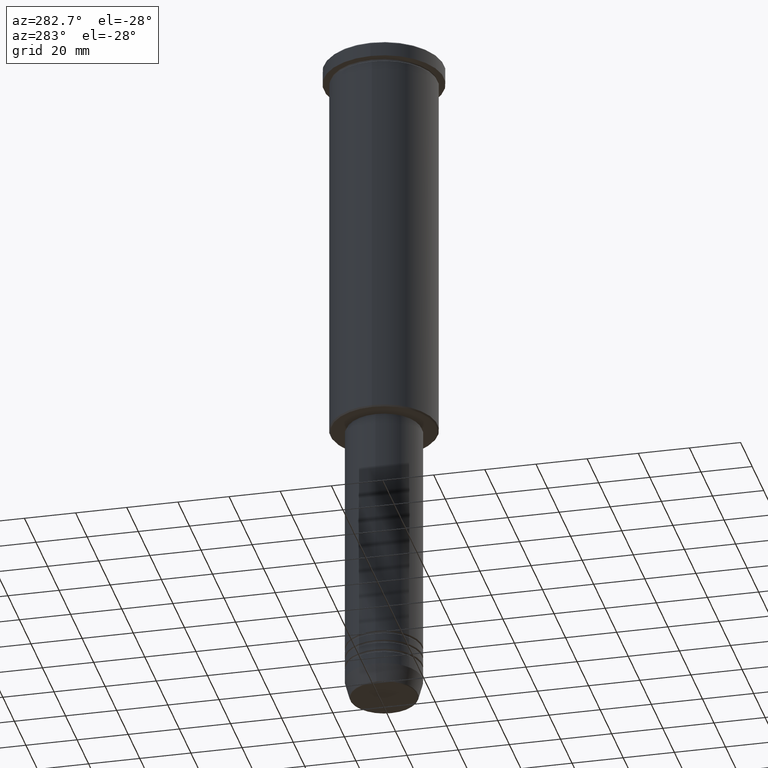
[diagram: clean part render]
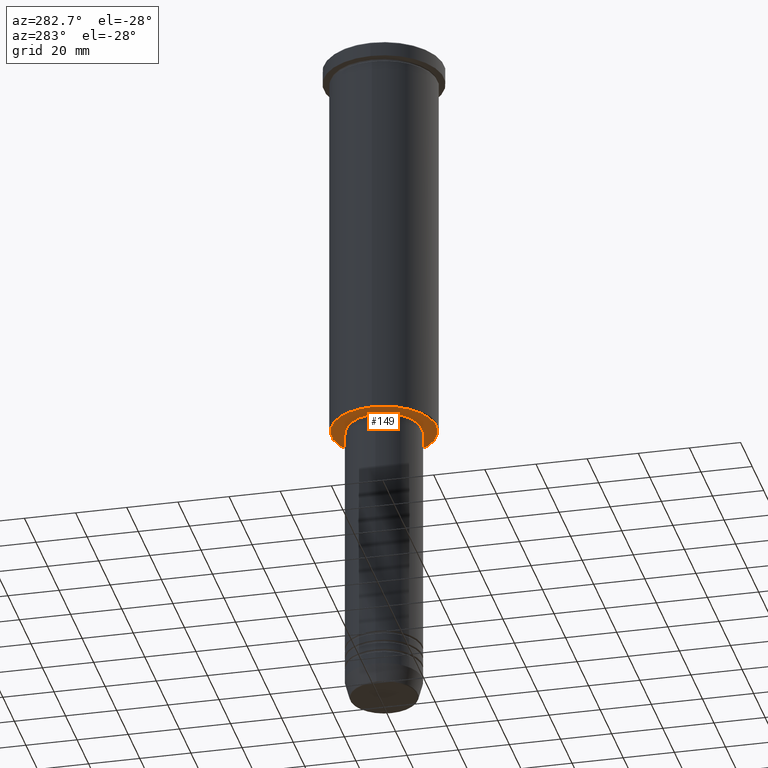
[diagram: same view with one face highlighted and labeled with its STEP entity id]
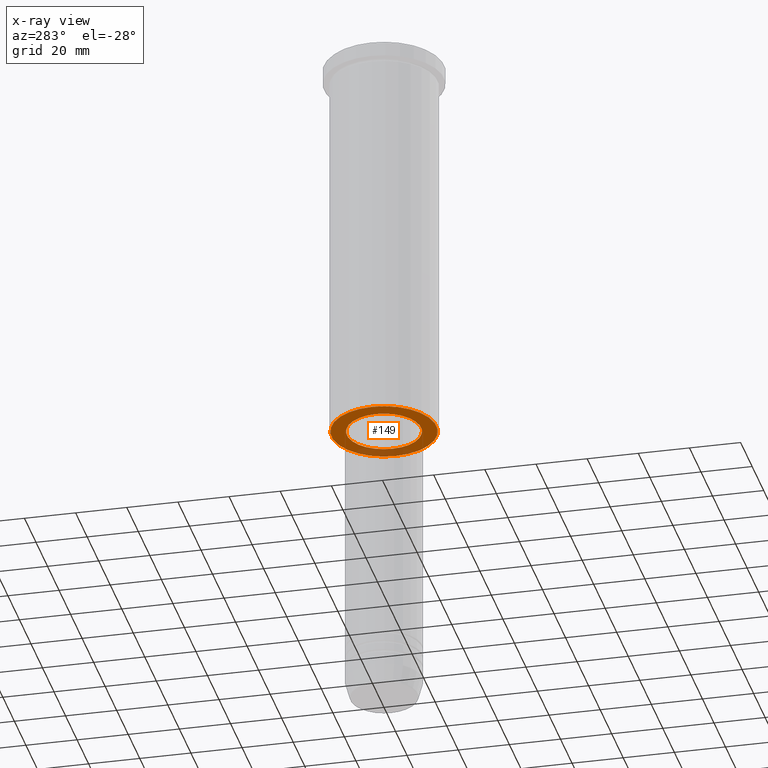
[diagram: x-ray of the same camera — body ghosted, the highlighted face saturated]
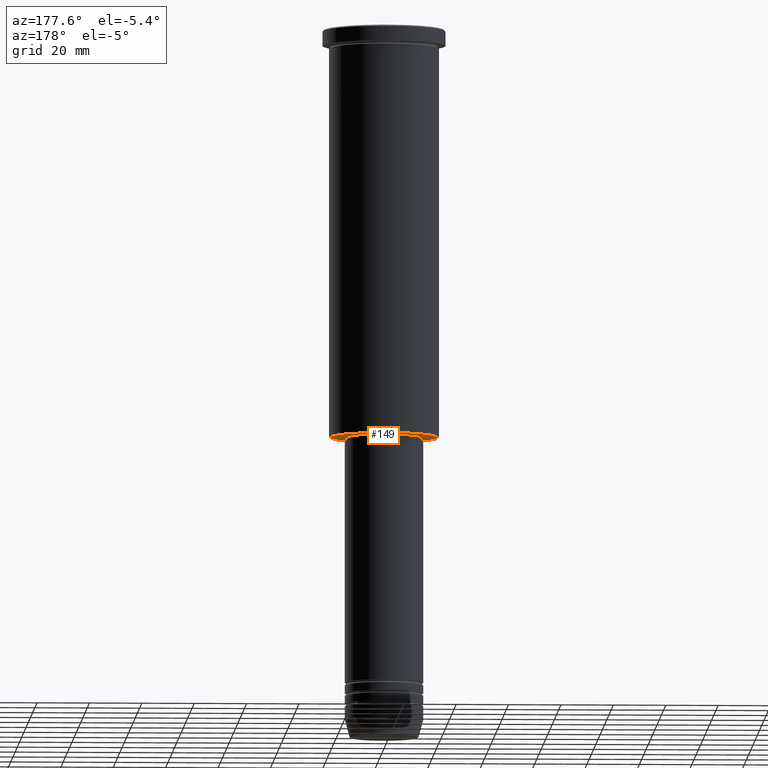
[diagram: same view with one face highlighted and labeled with its STEP entity id]
A machine part, auxiliary view. The second image highlights one B-rep face of the part: STEP entity #149.
The next image is the same camera in x-ray: the body ghosted, the highlighted face saturated — about 18% of this face is hidden behind the body in this view.
A second angle (auxiliary view) of the same face is appended — the face is thin or edge-on in the first view.
In plain terms, the highlighted planar face has unit normal (0, 0, -1).
Its self-contained STEP definition (entity closure, byte-faithful):
#9 = ORIENTED_EDGE ( 'NONE', *, *, #483, .T. ) ;
#31 = CARTESIAN_POINT ( 'NONE',  ( 0.000000000000000000, 21.00000000000000000, -156.0000000000000000 ) ) ;
#68 = EDGE_CURVE ( 'NONE', #1136, #70, #713, .T. ) ;
#70 = VERTEX_POINT ( 'NONE', #471 ) ;
#97 = CARTESIAN_POINT ( 'NONE',  ( 0.000000000000000000, 0.000000000000000000, -156.0000000000000000 ) ) ;
#102 = CARTESIAN_POINT ( 'NONE',  ( 14.49999999999999822, 0.000000000000000000, -156.0000000000000000 ) ) ;
#113 = DIRECTION ( 'NONE',  ( 0.000000000000000000, 0.000000000000000000, -1.000000000000000000 ) ) ;
#128 = CARTESIAN_POINT ( 'NONE',  ( 20.49999999999998934, 0.000000000000000000, -156.0000000000000000 ) ) ;
#149 = ADVANCED_FACE ( 'NONE', ( #1117, #925 ), #651, .T. ) ;
#154 = EDGE_LOOP ( 'NONE', ( #1125, #9 ) ) ;
#192 = CARTESIAN_POINT ( 'NONE',  ( 0.000000000000000000, 0.000000000000000000, -156.0000000000000000 ) ) ;
#266 = VERTEX_POINT ( 'NONE', #507 ) ;
#281 = EDGE_CURVE ( 'NONE', #266, #602, #677, .T. ) ;
#290 = CIRCLE ( 'NONE', #961, 14.49999999999999822 ) ;
#471 = CARTESIAN_POINT ( 'NONE',  ( -20.49999999999998934, 2.541142108230757480E-15, -156.0000000000000000 ) ) ;
#483 = EDGE_CURVE ( 'NONE', #70, #1136, #661, .T. ) ;
#507 = CARTESIAN_POINT ( 'NONE',  ( -14.49999999999999822, 1.775737858763662015E-15, -156.0000000000000000 ) ) ;
#517 = EDGE_CURVE ( 'NONE', #602, #266, #290, .T. ) ;
#564 = DIRECTION ( 'NONE',  ( -1.000000000000000000, 0.000000000000000000, -0.000000000000000000 ) ) ;
#574 = EDGE_LOOP ( 'NONE', ( #605, #1021 ) ) ;
#584 = DIRECTION ( 'NONE',  ( -1.000000000000000000, 0.000000000000000000, 0.000000000000000000 ) ) ;
#602 = VERTEX_POINT ( 'NONE', #102 ) ;
#605 = ORIENTED_EDGE ( 'NONE', *, *, #517, .T. ) ;
#607 = AXIS2_PLACEMENT_3D ( 'NONE', #97, #752, #1098 ) ;
#623 = AXIS2_PLACEMENT_3D ( 'NONE', #31, #738, #564 ) ;
#651 = PLANE ( 'NONE',  #623 ) ;
#661 = CIRCLE ( 'NONE', #607, 20.49999999999998934 ) ;
#677 = CIRCLE ( 'NONE', #1127, 14.49999999999999822 ) ;
#713 = CIRCLE ( 'NONE', #976, 20.49999999999998934 ) ;
#738 = DIRECTION ( 'NONE',  ( 0.000000000000000000, 0.000000000000000000, -1.000000000000000000 ) ) ;
#752 = DIRECTION ( 'NONE',  ( 0.000000000000000000, 0.000000000000000000, -1.000000000000000000 ) ) ;
#876 = DIRECTION ( 'NONE',  ( 1.000000000000000000, 0.000000000000000000, 0.000000000000000000 ) ) ;
#925 = FACE_BOUND ( 'NONE', #574, .T. ) ;
#961 = AXIS2_PLACEMENT_3D ( 'NONE', #1115, #967, #876 ) ;
#967 = DIRECTION ( 'NONE',  ( -0.000000000000000000, -0.000000000000000000, 1.000000000000000000 ) ) ;
#969 = DIRECTION ( 'NONE',  ( 1.000000000000000000, 0.000000000000000000, 0.000000000000000000 ) ) ;
#976 = AXIS2_PLACEMENT_3D ( 'NONE', #192, #113, #584 ) ;
#1021 = ORIENTED_EDGE ( 'NONE', *, *, #281, .T. ) ;
#1036 = DIRECTION ( 'NONE',  ( -0.000000000000000000, -0.000000000000000000, 1.000000000000000000 ) ) ;
#1098 = DIRECTION ( 'NONE',  ( -1.000000000000000000, 0.000000000000000000, 0.000000000000000000 ) ) ;
#1115 = CARTESIAN_POINT ( 'NONE',  ( 0.000000000000000000, 0.000000000000000000, -156.0000000000000000 ) ) ;
#1117 = FACE_OUTER_BOUND ( 'NONE', #154, .T. ) ;
#1125 = ORIENTED_EDGE ( 'NONE', *, *, #68, .T. ) ;
#1127 = AXIS2_PLACEMENT_3D ( 'NONE', #1129, #1036, #969 ) ;
#1129 = CARTESIAN_POINT ( 'NONE',  ( 0.000000000000000000, 0.000000000000000000, -156.0000000000000000 ) ) ;
#1136 = VERTEX_POINT ( 'NONE', #128 ) ;